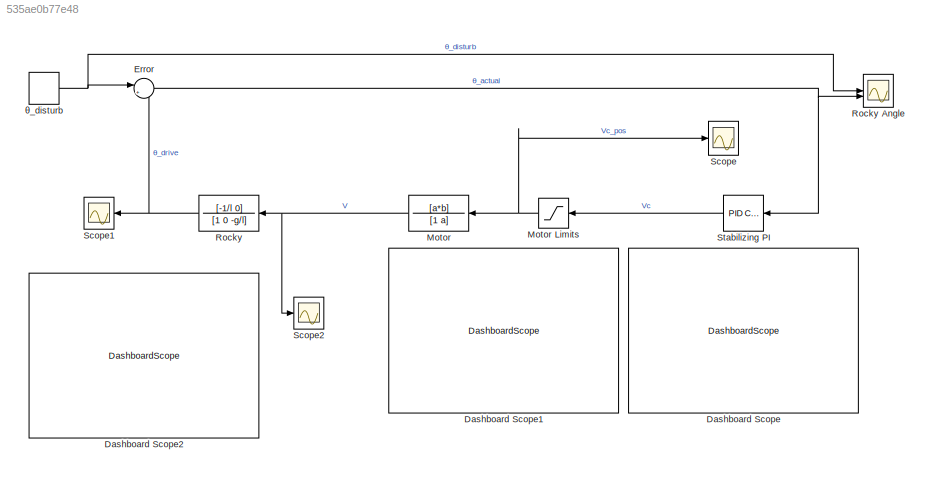
MODEL slx_535ae0b77e48
KIND model
CONFIG AbsTol = auto
CONFIG EnableMultiTasking = off
CONFIG FixedStep = auto
CONFIG MaxStep = auto
CONFIG MinStep = auto
CONFIG RelTol = 1e-3
CONFIG SampleTimeConstraint = Unconstrained
CONFIG SolverName = VariableStepAuto
CONFIG StartTime = 0.0
CONFIG StopTime = 10.0
BLOCK [DashboardScope] Dashboard Scope
BLOCK [DashboardScope] Dashboard Scope1
BLOCK [DashboardScope] Dashboard Scope2
BLOCK [Sum] Error
  Inputs = |++
BLOCK [TransferFcn] Motor
  Denominator = [1 a]
  Numerator = [a*b]
BLOCK [Saturate] Motor Limits
  LinearizeAsGain = off
  LowerLimit = -300
  UpperLimit = 300
  ZeroCross = off
BLOCK [TransferFcn] Rocky
  Denominator = [1 0 -g/l]
  Numerator = [-1/l 0]
BLOCK [Scope] Rocky Angle
  Floating = off
  NumInputPorts = 2
  ScopeSpecificationString = Simulink.scopes.TimeScopeBlockCfg('CurrentConfiguration', extmgr.ConfigurationSet(extmgr.Configuration('Core','General UI',true),extmgr.Configuration('Core','Source UI',true),extmgr.Configuration('Sources','WiredSimulink',true,'DataLoggingVariableName','ScopeData2'),extmgr.Configuration('Visuals','Time Domain',true,'SerializedDisplays',{struct('MinYLimReal','-0.03464','MaxYLimReal','0.11501','YLab...<+1413ch>
BLOCK [Scope] Scope
  Floating = off
  NumInputPorts = 3
  ScopeSpecificationString = Simulink.scopes.TimeScopeBlockCfg('CurrentConfiguration', extmgr.ConfigurationSet(extmgr.Configuration('Core','General UI',true),extmgr.Configuration('Core','Source UI',true),extmgr.Configuration('Sources','WiredSimulink',true,'DataLoggingVariableName','ScopeData3'),extmgr.Configuration('Visuals','Time Domain',true,'SerializedDisplays',{struct('MinYLimReal','-14.92522','MaxYLimReal','41.22323','YL...<+1412ch>
BLOCK [Scope] Scope1
  Floating = off
  NumInputPorts = 1
  ScopeSpecificationString = Simulink.scopes.TimeScopeBlockCfg('CurrentConfiguration', extmgr.ConfigurationSet(extmgr.Configuration('Core','General UI',true),extmgr.Configuration('Core','Source UI',true),extmgr.Configuration('Sources','WiredSimulink',true,'DataLoggingVariableName','ScopeData4'),extmgr.Configuration('Visuals','Time Domain',true,'SerializedDisplays',{struct('MinYLimReal','-0.00724','MaxYLimReal','0.00705','YLab...<+1366ch>
BLOCK [Scope] Scope2
  Floating = off
  NumInputPorts = 1
  ScopeSpecificationString = Simulink.scopes.TimeScopeBlockCfg('CurrentConfiguration', extmgr.ConfigurationSet(extmgr.Configuration('Core','General UI',true),extmgr.Configuration('Core','Source UI',true),extmgr.Configuration('Sources','WiredSimulink',true,'DataLoggingVariableName','ScopeData5'),extmgr.Configuration('Visuals','Time Domain',true,'SerializedDisplays',{struct('MinYLimReal','-0.03994','MaxYLimReal','0.02647','YLab...<+1360ch>
BLOCK [Reference] Stabilizing PI  REF=slpidlib/PID Controller
  LibrarySourceBlock = simulink/Continuous/PID Controller
  SourceBlock = slpidlib/PID Controller
  SourceType = PID 1dof
BLOCK [DiscretePulseGenerator] θ_disturb
  Amplitude = 0.1
  Period = 4
  PulseType = Time based
  PulseWidth = 0.5
NET Error:1 -> Rocky Angle:2, Stabilizing PI:1
NET Motor Limits:1 -> Motor:1, Scope:1
NET Motor:1 -> Rocky:1, Scope2:1
NET Rocky:1 -> Error:2, Scope1:1
LINE Stabilizing PI:1 -> Motor Limits:1
NET θ_disturb:1 -> Error:1, Rocky Angle:1
note: NET lines group one-source signal fan-out (src -> all destinations, sorted); 1:1 wires keep LINE
